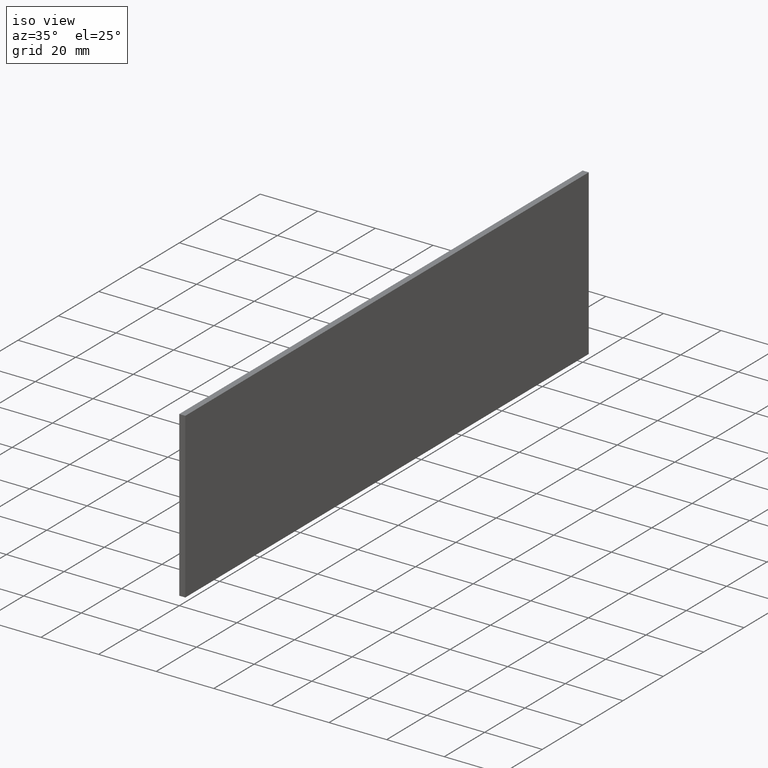
[diagram: clean part render]
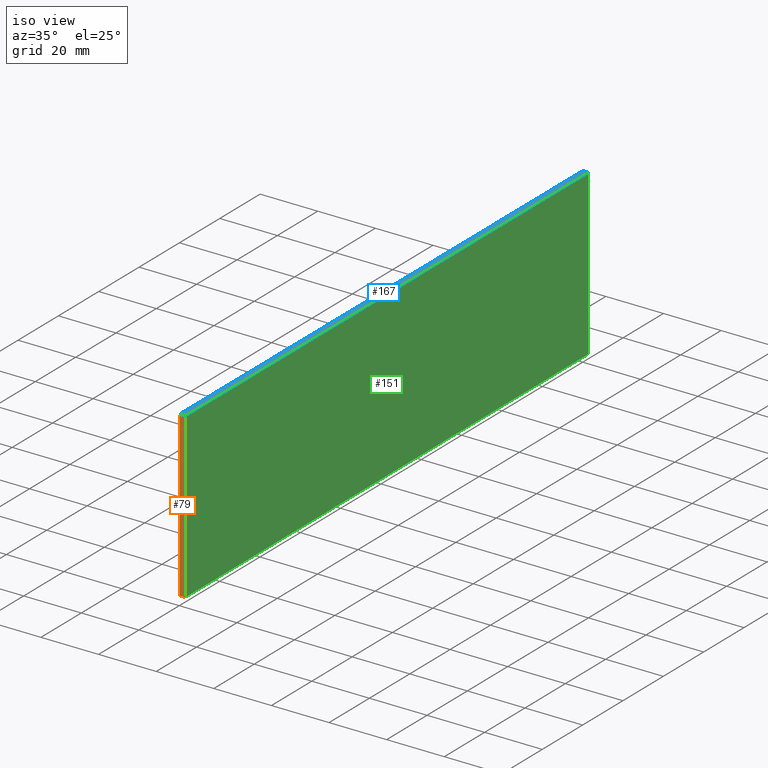
[diagram: same view with three faces highlighted in distinct colors, each labeled with its STEP entity id]
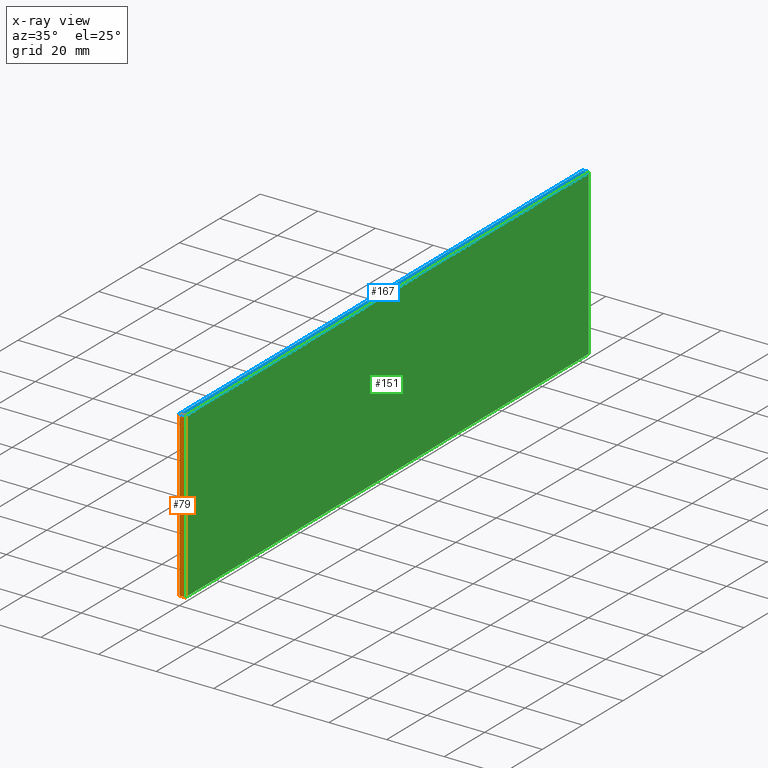
[diagram: x-ray of the same camera — body ghosted, the three highlighted faces saturated]
A machine part, iso view with three faces highlighted in distinct colors.
The next image is the same camera in x-ray (body ghosted, the three faces saturated) — at least one of them is partly hidden behind the body in this view.
Their STEP definitions:

[orange] entity #79 — the highlighted face is a freeform B-spline surface patch.
#44=CARTESIAN_POINT('',(-0.104894988427119,0.0,59.847149889522953));
#45=CARTESIAN_POINT('',(2.204894894549833,0.0,59.847149889522953));
#46=CARTESIAN_POINT('',(-0.104894988427119,0.0,-2.847151418382074));
#47=CARTESIAN_POINT('',(2.204894894549833,0.0,-2.847151418382074));
#48=B_SPLINE_SURFACE_WITH_KNOTS('',1,1,((#44,#46),(#45,#47)),.UNSPECIFIED.,.F.,.F.,.U.,(2,2),(2,2),(0.0,2.309789882976952),(0.0,62.694301307905022),.UNSPECIFIED.);
#49=CARTESIAN_POINT('',(0.0,0.0,0.0));
#50=VERTEX_POINT('',#49);
#51=CARTESIAN_POINT('',(0.0,0.0,57.0));
#52=VERTEX_POINT('',#51);
#53=CARTESIAN_POINT('',(0.0,0.0,0.0));
#54=CARTESIAN_POINT('',(0.0,0.0,57.0));
#55=QUASI_UNIFORM_CURVE('',1,(#53,#54),.UNSPECIFIED.,.F.,.U.);
#56=EDGE_CURVE('',#50,#52,#55,.T.);
#57=ORIENTED_EDGE('',*,*,#56,.F.);
#58=CARTESIAN_POINT('',(2.100000000000030,0.0,0.0));
#59=VERTEX_POINT('',#58);
#60=CARTESIAN_POINT('',(2.100000000000030,0.0,0.0));
#61=CARTESIAN_POINT('',(0.0,0.0,0.0));
#62=QUASI_UNIFORM_CURVE('',1,(#60,#61),.UNSPECIFIED.,.F.,.U.);
#63=EDGE_CURVE('',#59,#50,#62,.T.);
#64=ORIENTED_EDGE('',*,*,#63,.F.);
#65=CARTESIAN_POINT('',(2.100000000000030,0.0,57.0));
#66=VERTEX_POINT('',#65);
#67=CARTESIAN_POINT('',(2.100000000000030,0.0,57.0));
#68=CARTESIAN_POINT('',(2.100000000000030,0.0,0.0));
#69=QUASI_UNIFORM_CURVE('',1,(#67,#68),.UNSPECIFIED.,.F.,.U.);
#70=EDGE_CURVE('',#66,#59,#69,.T.);
#71=ORIENTED_EDGE('',*,*,#70,.F.);
#72=CARTESIAN_POINT('',(0.0,0.0,57.0));
#73=CARTESIAN_POINT('',(2.100000000000030,0.0,57.0));
#74=QUASI_UNIFORM_CURVE('',1,(#72,#73),.UNSPECIFIED.,.F.,.U.);
#75=EDGE_CURVE('',#52,#66,#74,.T.);
#76=ORIENTED_EDGE('',*,*,#75,.F.);
#77=EDGE_LOOP('',(#57,#64,#71,#76));
#78=FACE_OUTER_BOUND('',#77,.T.);
#79=ADVANCED_FACE('',(#78),#48,.F.);

[blue] entity #167 — the highlighted face is a freeform B-spline surface patch.
#51=CARTESIAN_POINT('',(0.0,0.0,57.0));
#52=VERTEX_POINT('',#51);
#65=CARTESIAN_POINT('',(2.100000000000030,0.0,57.0));
#66=VERTEX_POINT('',#65);
#72=CARTESIAN_POINT('',(0.0,0.0,57.0));
#73=CARTESIAN_POINT('',(2.100000000000030,0.0,57.0));
#74=QUASI_UNIFORM_CURVE('',1,(#72,#73),.UNSPECIFIED.,.F.,.U.);
#75=EDGE_CURVE('',#52,#66,#74,.T.);
#87=CARTESIAN_POINT('',(0.0,200.0,57.0));
#88=VERTEX_POINT('',#87);
#94=CARTESIAN_POINT('',(2.100000000000030,200.0,57.0));
#95=VERTEX_POINT('',#94);
#96=CARTESIAN_POINT('',(0.0,200.0,57.0));
#97=CARTESIAN_POINT('',(2.100000000000030,200.0,57.0));
#98=QUASI_UNIFORM_CURVE('',1,(#96,#97),.UNSPECIFIED.,.F.,.U.);
#99=EDGE_CURVE('',#88,#95,#98,.T.);
#144=CARTESIAN_POINT('',(2.100000000000030,200.0,57.0));
#145=CARTESIAN_POINT('',(2.100000000000030,0.0,57.0));
#146=QUASI_UNIFORM_CURVE('',1,(#144,#145),.UNSPECIFIED.,.F.,.U.);
#147=EDGE_CURVE('',#95,#66,#146,.T.);
#152=CARTESIAN_POINT('',(2.204894897363336,-9.989999612361171,57.0));
#153=CARTESIAN_POINT('',(-0.104895047567011,-9.989999612361171,57.0));
#154=CARTESIAN_POINT('',(2.204894897363336,209.990004976779200,57.0));
#155=CARTESIAN_POINT('',(-0.104895047567011,209.990004976779200,57.0));
#156=B_SPLINE_SURFACE_WITH_KNOTS('',1,1,((#152,#154),(#153,#155)),.UNSPECIFIED.,.F.,.F.,.U.,(2,2),(2,2),(0.0,2.309789944930347),(0.0,219.980004589140410),.UNSPECIFIED.);
#157=ORIENTED_EDGE('',*,*,#75,.T.);
#158=ORIENTED_EDGE('',*,*,#147,.F.);
#159=ORIENTED_EDGE('',*,*,#99,.F.);
#160=CARTESIAN_POINT('',(0.0,200.0,57.0));
#161=CARTESIAN_POINT('',(0.0,0.0,57.0));
#162=QUASI_UNIFORM_CURVE('',1,(#160,#161),.UNSPECIFIED.,.F.,.U.);
#163=EDGE_CURVE('',#88,#52,#162,.T.);
#164=ORIENTED_EDGE('',*,*,#163,.T.);
#165=EDGE_LOOP('',(#157,#158,#159,#164));
#166=FACE_OUTER_BOUND('',#165,.T.);
#167=ADVANCED_FACE('',(#166),#156,.F.);

[green] entity #151 — the highlighted face is a freeform B-spline surface patch.
#58=CARTESIAN_POINT('',(2.100000000000030,0.0,0.0));
#59=VERTEX_POINT('',#58);
#65=CARTESIAN_POINT('',(2.100000000000030,0.0,57.0));
#66=VERTEX_POINT('',#65);
#67=CARTESIAN_POINT('',(2.100000000000030,0.0,57.0));
#68=CARTESIAN_POINT('',(2.100000000000030,0.0,0.0));
#69=QUASI_UNIFORM_CURVE('',1,(#67,#68),.UNSPECIFIED.,.F.,.U.);
#70=EDGE_CURVE('',#66,#59,#69,.T.);
#94=CARTESIAN_POINT('',(2.100000000000030,200.0,57.0));
#95=VERTEX_POINT('',#94);
#101=CARTESIAN_POINT('',(2.100000000000030,200.0,0.0));
#102=VERTEX_POINT('',#101);
#103=CARTESIAN_POINT('',(2.100000000000030,200.0,57.0));
#104=CARTESIAN_POINT('',(2.100000000000030,200.0,0.0));
#105=QUASI_UNIFORM_CURVE('',1,(#103,#104),.UNSPECIFIED.,.F.,.U.);
#106=EDGE_CURVE('',#95,#102,#105,.T.);
#128=CARTESIAN_POINT('',(2.100000000000030,200.0,0.0));
#129=CARTESIAN_POINT('',(2.100000000000030,0.0,0.0));
#130=QUASI_UNIFORM_CURVE('',1,(#128,#129),.UNSPECIFIED.,.F.,.U.);
#131=EDGE_CURVE('',#102,#59,#130,.T.);
#136=CARTESIAN_POINT('',(2.100000000000030,-9.989999612361194,-2.847149889522936));
#137=CARTESIAN_POINT('',(2.100000000000030,-9.989999612361194,59.847151418382090));
#138=CARTESIAN_POINT('',(2.100000000000030,209.990004976779200,-2.847149889522937));
#139=CARTESIAN_POINT('',(2.100000000000030,209.990004976779200,59.847151418382090));
#140=B_SPLINE_SURFACE_WITH_KNOTS('',1,1,((#136,#138),(#137,#139)),.UNSPECIFIED.,.F.,.F.,.U.,(2,2),(2,2),(0.0,62.694301307905022),(0.0,219.980004589140410),.UNSPECIFIED.);
#141=ORIENTED_EDGE('',*,*,#70,.T.);
#142=ORIENTED_EDGE('',*,*,#131,.F.);
#143=ORIENTED_EDGE('',*,*,#106,.F.);
#144=CARTESIAN_POINT('',(2.100000000000030,200.0,57.0));
#145=CARTESIAN_POINT('',(2.100000000000030,0.0,57.0));
#146=QUASI_UNIFORM_CURVE('',1,(#144,#145),.UNSPECIFIED.,.F.,.U.);
#147=EDGE_CURVE('',#95,#66,#146,.T.);
#148=ORIENTED_EDGE('',*,*,#147,.T.);
#149=EDGE_LOOP('',(#141,#142,#143,#148));
#150=FACE_OUTER_BOUND('',#149,.T.);
#151=ADVANCED_FACE('',(#150),#140,.F.);